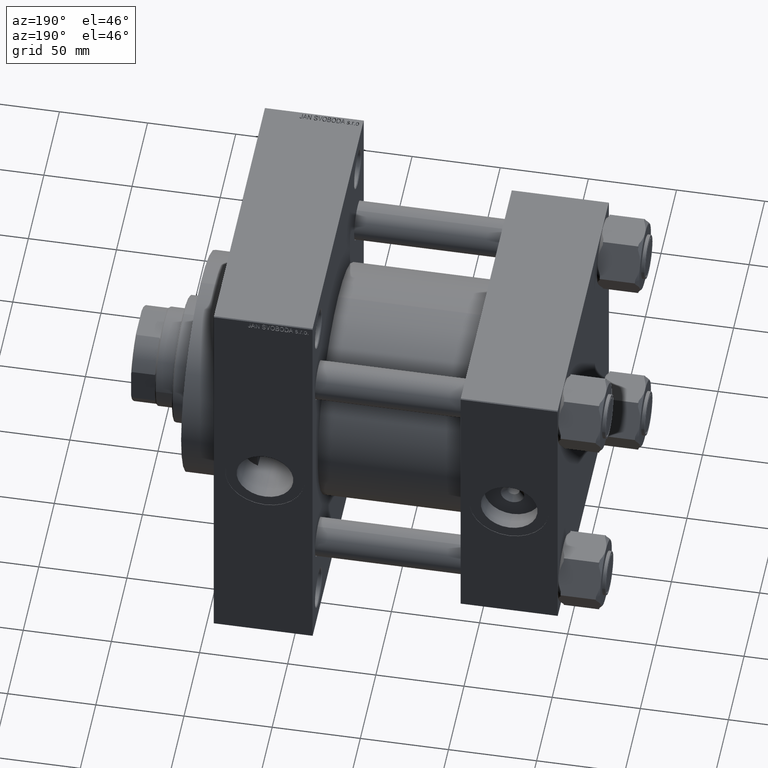
[diagram: clean part render]
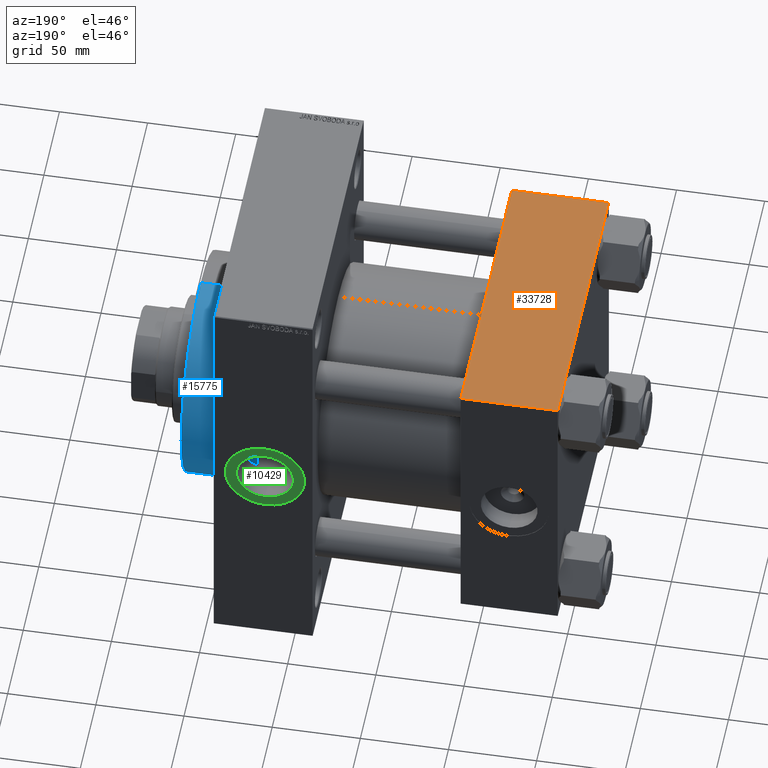
[diagram: same view with three faces highlighted in distinct colors, each labeled with its STEP entity id]
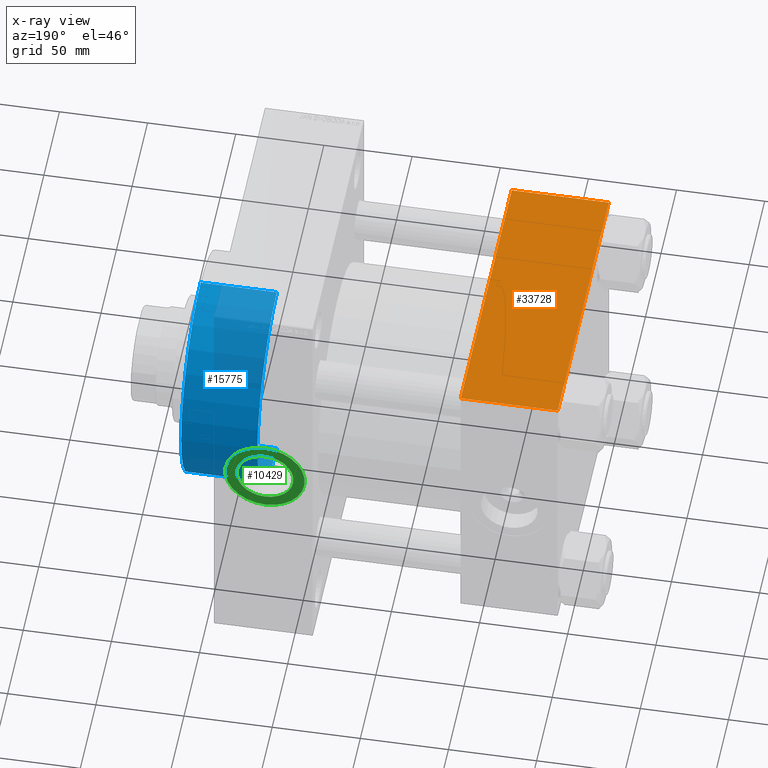
[diagram: x-ray of the same camera — body ghosted, the three highlighted faces saturated]
A machine part, auxiliary view with three faces highlighted in distinct colors.
The next image is the same camera in x-ray (body ghosted, the three faces saturated) — at least one of them is partly hidden behind the body in this view.
Their STEP definitions:

[orange] entity #33728 — the highlighted planar face has unit normal (0, 0, -1).
#2098 = LINE ( 'NONE', #24596, #19393 ) ;
#3062 = DIRECTION ( 'NONE',  ( 0.000000000000000000, 1.000000000000000000, 8.410780489584519171E-17 ) ) ;
#3562 = VERTEX_POINT ( 'NONE', #20777 ) ;
#4839 = CARTESIAN_POINT ( 'NONE',  ( 0.000000000000000000, 82.00000000000005684, 82.50000000000002842 ) ) ;
#5515 = AXIS2_PLACEMENT_3D ( 'NONE', #43710, #25319, #3062 ) ;
#5621 = LINE ( 'NONE', #32471, #11782 ) ;
#6899 = LINE ( 'NONE', #28926, #14897 ) ;
#8604 = ORIENTED_EDGE ( 'NONE', *, *, #37005, .T. ) ;
#10160 = ORIENTED_EDGE ( 'NONE', *, *, #38381, .T. ) ;
#10755 = DIRECTION ( 'NONE',  ( 0.000000000000000000, -1.000000000000000000, -8.410780489584519171E-17 ) ) ;
#11782 = VECTOR ( 'NONE', #46763, 1000.000000000000000 ) ;
#13065 = VERTEX_POINT ( 'NONE', #23601 ) ;
#14897 = VECTOR ( 'NONE', #10755, 1000.000000000000000 ) ;
#18732 = VECTOR ( 'NONE', #19603, 1000.000000000000000 ) ;
#19393 = VECTOR ( 'NONE', #46143, 1000.000000000000000 ) ;
#19603 = DIRECTION ( 'NONE',  ( -1.000000000000000000, 0.000000000000000000, 0.000000000000000000 ) ) ;
#20777 = CARTESIAN_POINT ( 'NONE',  ( 55.00000000000000000, 82.00000000000005684, 82.50000000000002842 ) ) ;
#21582 = ORIENTED_EDGE ( 'NONE', *, *, #33668, .F. ) ;
#23601 = CARTESIAN_POINT ( 'NONE',  ( 55.00000000000000000, -81.99999999999997158, 82.50000000000001421 ) ) ;
#24596 = CARTESIAN_POINT ( 'NONE',  ( 55.00000000000000000, 82.50000000000002842, 82.50000000000002842 ) ) ;
#25319 = DIRECTION ( 'NONE',  ( 0.000000000000000000, 8.410780489584519171E-17, -1.000000000000000000 ) ) ;
#26182 = CARTESIAN_POINT ( 'NONE',  ( 0.000000000000000000, -81.99999999999997158, 82.50000000000001421 ) ) ;
#28703 = FACE_OUTER_BOUND ( 'NONE', #30686, .T. ) ;
#28926 = CARTESIAN_POINT ( 'NONE',  ( 0.000000000000000000, 82.50000000000002842, 82.50000000000002842 ) ) ;
#29265 = CARTESIAN_POINT ( 'NONE',  ( 0.000000000000000000, 82.00000000000005684, 82.50000000000002842 ) ) ;
#30686 = EDGE_LOOP ( 'NONE', ( #10160, #32124, #21582, #8604 ) ) ;
#32124 = ORIENTED_EDGE ( 'NONE', *, *, #37566, .T. ) ;
#32471 = CARTESIAN_POINT ( 'NONE',  ( 55.00000000000000000, -81.99999999999997158, 82.50000000000001421 ) ) ;
#33668 = EDGE_CURVE ( 'NONE', #3562, #13065, #2098, .T. ) ;
#33728 = ADVANCED_FACE ( 'NONE', ( #28703 ), #43230, .F. ) ;
#34121 = VERTEX_POINT ( 'NONE', #26182 ) ;
#34354 = LINE ( 'NONE', #4839, #18732 ) ;
#37005 = EDGE_CURVE ( 'NONE', #3562, #42173, #34354, .T. ) ;
#37566 = EDGE_CURVE ( 'NONE', #34121, #13065, #5621, .T. ) ;
#38381 = EDGE_CURVE ( 'NONE', #42173, #34121, #6899, .T. ) ;
#42173 = VERTEX_POINT ( 'NONE', #29265 ) ;
#43230 = PLANE ( 'NONE',  #5515 ) ;
#43710 = CARTESIAN_POINT ( 'NONE',  ( 55.00000000000000000, 82.50000000000002842, 82.50000000000002842 ) ) ;
#46143 = DIRECTION ( 'NONE',  ( 0.000000000000000000, -1.000000000000000000, -8.410780489584519171E-17 ) ) ;
#46763 = DIRECTION ( 'NONE',  ( 1.000000000000000000, 0.000000000000000000, 0.000000000000000000 ) ) ;

[blue] entity #15775 — the highlighted cylindrical surface (partial cylindrical patch) has radius 62.75 mm, axis along (-1, 0, 0).
#233 = DIRECTION ( 'NONE',  ( 0.000000000000000000, 0.000000000000000000, 1.000000000000000000 ) ) ;
#525 = CARTESIAN_POINT ( 'NONE',  ( 0.000000000000000000, 0.000000000000000000, 0.000000000000000000 ) ) ;
#3592 = EDGE_LOOP ( 'NONE', ( #38062, #34974, #43836, #15217 ) ) ;
#7269 = CARTESIAN_POINT ( 'NONE',  ( -62.75000000000000000, 0.000000000000000000, 43.25999999999999801 ) ) ;
#8553 = DIRECTION ( 'NONE',  ( -0.000000000000000000, -0.000000000000000000, -1.000000000000000000 ) ) ;
#8789 = VECTOR ( 'NONE', #39839, 1000.000000000000000 ) ;
#10861 = CARTESIAN_POINT ( 'NONE',  ( 0.000000000000000000, 0.000000000000000000, 43.25999999999999801 ) ) ;
#11568 = AXIS2_PLACEMENT_3D ( 'NONE', #10861, #233, #21773 ) ;
#11878 = DIRECTION ( 'NONE',  ( 0.000000000000000000, 0.000000000000000000, 1.000000000000000000 ) ) ;
#12881 = EDGE_CURVE ( 'NONE', #36390, #32973, #28475, .T. ) ;
#14769 = VERTEX_POINT ( 'NONE', #32891 ) ;
#15217 = ORIENTED_EDGE ( 'NONE', *, *, #38618, .T. ) ;
#15229 = DIRECTION ( 'NONE',  ( -0.000000000000000000, -0.000000000000000000, -1.000000000000000000 ) ) ;
#15775 = ADVANCED_FACE ( 'NONE', ( #33950 ), #42175, .T. ) ;
#19225 = CARTESIAN_POINT ( 'NONE',  ( 62.75000000000000000, 7.684658664649641591E-15, 0.000000000000000000 ) ) ;
#20687 = VECTOR ( 'NONE', #15229, 1000.000000000000000 ) ;
#21773 = DIRECTION ( 'NONE',  ( 1.000000000000000000, 0.000000000000000000, 0.000000000000000000 ) ) ;
#22273 = EDGE_CURVE ( 'NONE', #26434, #14769, #40177, .T. ) ;
#23574 = AXIS2_PLACEMENT_3D ( 'NONE', #27175, #8553, #34436 ) ;
#24853 = CARTESIAN_POINT ( 'NONE',  ( 62.75000000000000000, 7.684658664649641591E-15, 43.25999999999999801 ) ) ;
#26434 = VERTEX_POINT ( 'NONE', #39710 ) ;
#27175 = CARTESIAN_POINT ( 'NONE',  ( 0.000000000000000000, 0.000000000000000000, 43.25999999999999801 ) ) ;
#28063 = CIRCLE ( 'NONE', #45066, 62.75000000000000000 ) ;
#28475 = LINE ( 'NONE', #24853, #8789 ) ;
#30632 = EDGE_CURVE ( 'NONE', #26434, #36390, #40936, .T. ) ;
#32891 = CARTESIAN_POINT ( 'NONE',  ( -62.75000000000000000, 0.000000000000000000, 0.000000000000000000 ) ) ;
#32973 = VERTEX_POINT ( 'NONE', #19225 ) ;
#33950 = FACE_OUTER_BOUND ( 'NONE', #3592, .T. ) ;
#34436 = DIRECTION ( 'NONE',  ( -1.000000000000000000, 0.000000000000000000, 0.000000000000000000 ) ) ;
#34974 = ORIENTED_EDGE ( 'NONE', *, *, #30632, .F. ) ;
#36390 = VERTEX_POINT ( 'NONE', #40292 ) ;
#37280 = DIRECTION ( 'NONE',  ( 1.000000000000000000, 0.000000000000000000, 0.000000000000000000 ) ) ;
#38062 = ORIENTED_EDGE ( 'NONE', *, *, #12881, .F. ) ;
#38618 = EDGE_CURVE ( 'NONE', #14769, #32973, #28063, .T. ) ;
#39710 = CARTESIAN_POINT ( 'NONE',  ( -62.75000000000000000, 0.000000000000000000, 43.25999999999999801 ) ) ;
#39839 = DIRECTION ( 'NONE',  ( -0.000000000000000000, -0.000000000000000000, -1.000000000000000000 ) ) ;
#40177 = LINE ( 'NONE', #7269, #20687 ) ;
#40292 = CARTESIAN_POINT ( 'NONE',  ( 62.75000000000000000, 7.684658664649641591E-15, 43.25999999999999801 ) ) ;
#40936 = CIRCLE ( 'NONE', #11568, 62.75000000000000000 ) ;
#42175 = CYLINDRICAL_SURFACE ( 'NONE', #23574, 62.75000000000000000 ) ;
#43836 = ORIENTED_EDGE ( 'NONE', *, *, #22273, .T. ) ;
#45066 = AXIS2_PLACEMENT_3D ( 'NONE', #525, #11878, #37280 ) ;

[green] entity #10429 — the highlighted planar face has unit normal (0, 1, 0).
#464 = DIRECTION ( 'NONE',  ( 0.000000000000000000, 1.000000000000000000, 0.000000000000000000 ) ) ;
#552 = EDGE_CURVE ( 'NONE', #7452, #20048, #45582, .T. ) ;
#1094 = ORIENTED_EDGE ( 'NONE', *, *, #14896, .T. ) ;
#3055 = DIRECTION ( 'NONE',  ( 0.000000000000000000, 0.000000000000000000, 1.000000000000000000 ) ) ;
#5488 = FACE_BOUND ( 'NONE', #8647, .T. ) ;
#5641 = AXIS2_PLACEMENT_3D ( 'NONE', #28228, #17344, #20975 ) ;
#5957 = DIRECTION ( 'NONE',  ( 0.000000000000000000, 1.000000000000000000, 0.000000000000000000 ) ) ;
#6034 = CARTESIAN_POINT ( 'NONE',  ( 166.0000000000000000, 82.29999999999998295, 22.49999999999998579 ) ) ;
#6226 = VERTEX_POINT ( 'NONE', #30116 ) ;
#7452 = VERTEX_POINT ( 'NONE', #6034 ) ;
#7774 = ORIENTED_EDGE ( 'NONE', *, *, #46951, .F. ) ;
#8441 = EDGE_LOOP ( 'NONE', ( #25925, #1094 ) ) ;
#8647 = EDGE_LOOP ( 'NONE', ( #22475, #7774 ) ) ;
#10429 = ADVANCED_FACE ( 'NONE', ( #5488, #23880 ), #13477, .T. ) ;
#11435 = CIRCLE ( 'NONE', #40050, 16.11999999999998678 ) ;
#11564 = DIRECTION ( 'NONE',  ( 0.000000000000000000, 0.000000000000000000, 1.000000000000000000 ) ) ;
#13477 = PLANE ( 'NONE',  #5641 ) ;
#14896 = EDGE_CURVE ( 'NONE', #20048, #7452, #20460, .T. ) ;
#14899 = CARTESIAN_POINT ( 'NONE',  ( 166.0000000000000000, 82.29999999999998295, -22.49999999999997868 ) ) ;
#17344 = DIRECTION ( 'NONE',  ( 0.000000000000000000, 1.000000000000000000, 0.000000000000000000 ) ) ;
#18365 = DIRECTION ( 'NONE',  ( 0.000000000000000000, 1.000000000000000000, 0.000000000000000000 ) ) ;
#18843 = CARTESIAN_POINT ( 'NONE',  ( 166.0000000000000000, 82.29999999999998295, 4.635293498561508778E-15 ) ) ;
#19738 = EDGE_CURVE ( 'NONE', #31069, #6226, #26758, .T. ) ;
#20048 = VERTEX_POINT ( 'NONE', #14899 ) ;
#20460 = CIRCLE ( 'NONE', #31274, 22.49999999999998224 ) ;
#20975 = DIRECTION ( 'NONE',  ( 0.000000000000000000, -0.000000000000000000, 1.000000000000000000 ) ) ;
#22475 = ORIENTED_EDGE ( 'NONE', *, *, #19738, .F. ) ;
#22960 = CARTESIAN_POINT ( 'NONE',  ( 166.0000000000000000, 82.29999999999998295, 4.635293498561508778E-15 ) ) ;
#23880 = FACE_OUTER_BOUND ( 'NONE', #8441, .T. ) ;
#24353 = CARTESIAN_POINT ( 'NONE',  ( 166.0000000000000000, 82.29999999999998295, 4.635293498561508778E-15 ) ) ;
#24452 = AXIS2_PLACEMENT_3D ( 'NONE', #44537, #40194, #29538 ) ;
#25925 = ORIENTED_EDGE ( 'NONE', *, *, #552, .T. ) ;
#26758 = CIRCLE ( 'NONE', #24452, 16.11999999999998678 ) ;
#28228 = CARTESIAN_POINT ( 'NONE',  ( 166.0000000000000000, 82.29999999999998295, 4.635293498561508778E-15 ) ) ;
#29538 = DIRECTION ( 'NONE',  ( 0.000000000000000000, 0.000000000000000000, 1.000000000000000000 ) ) ;
#30116 = CARTESIAN_POINT ( 'NONE',  ( 166.0000000000000000, 82.29999999999998295, -16.11999999999998323 ) ) ;
#31069 = VERTEX_POINT ( 'NONE', #42709 ) ;
#31274 = AXIS2_PLACEMENT_3D ( 'NONE', #18843, #464, #11564 ) ;
#37699 = DIRECTION ( 'NONE',  ( 0.000000000000000000, 0.000000000000000000, 1.000000000000000000 ) ) ;
#40050 = AXIS2_PLACEMENT_3D ( 'NONE', #22960, #18365, #37699 ) ;
#40194 = DIRECTION ( 'NONE',  ( 0.000000000000000000, 1.000000000000000000, 0.000000000000000000 ) ) ;
#42709 = CARTESIAN_POINT ( 'NONE',  ( 166.0000000000000000, 82.29999999999998295, 16.11999999999998678 ) ) ;
#44537 = CARTESIAN_POINT ( 'NONE',  ( 166.0000000000000000, 82.29999999999998295, 4.635293498561508778E-15 ) ) ;
#45582 = CIRCLE ( 'NONE', #46341, 22.49999999999998224 ) ;
#46341 = AXIS2_PLACEMENT_3D ( 'NONE', #24353, #5957, #3055 ) ;
#46951 = EDGE_CURVE ( 'NONE', #6226, #31069, #11435, .T. ) ;